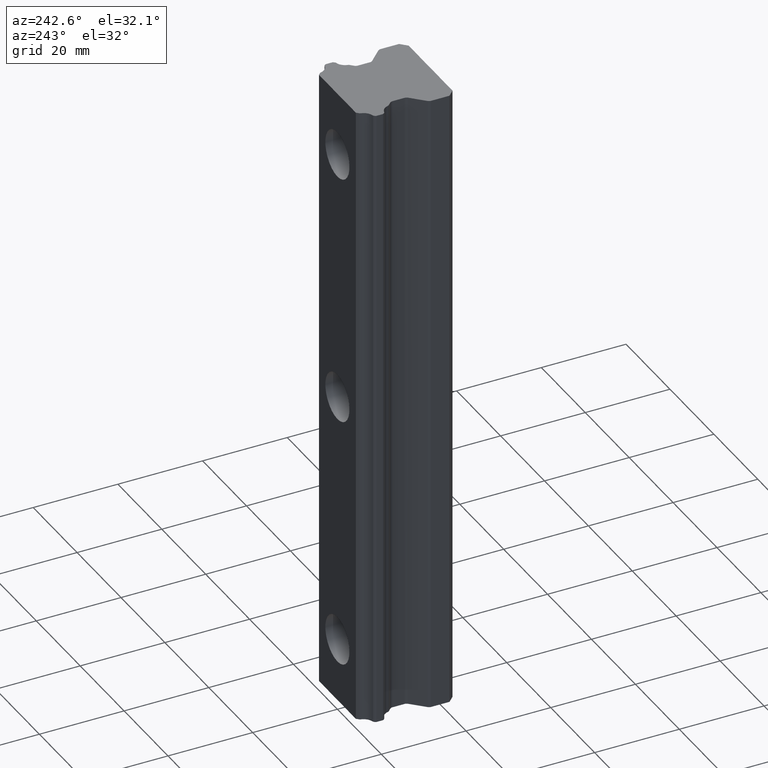
[diagram: clean part render]
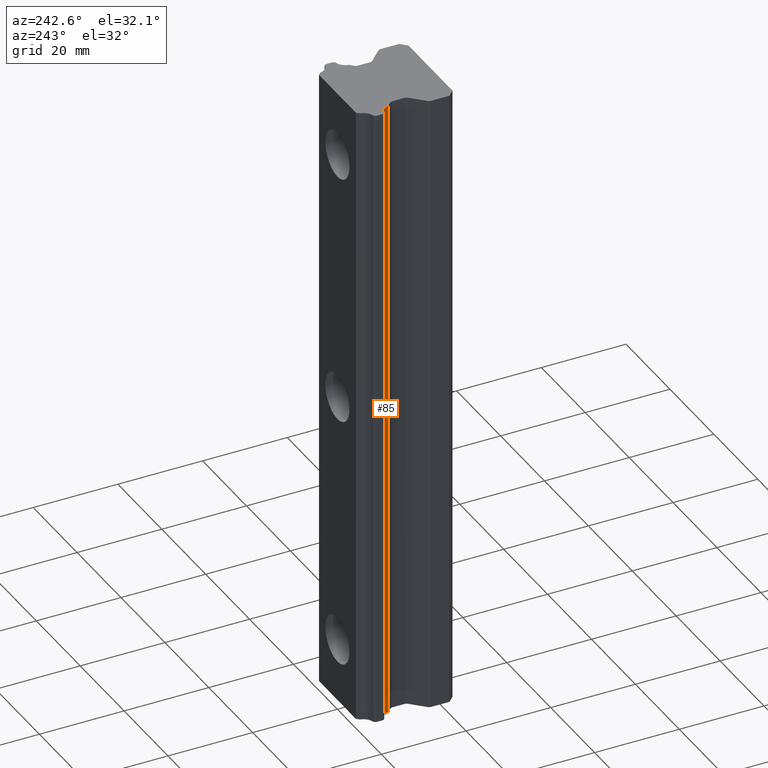
[diagram: same view with one face highlighted and labeled with its STEP entity id]
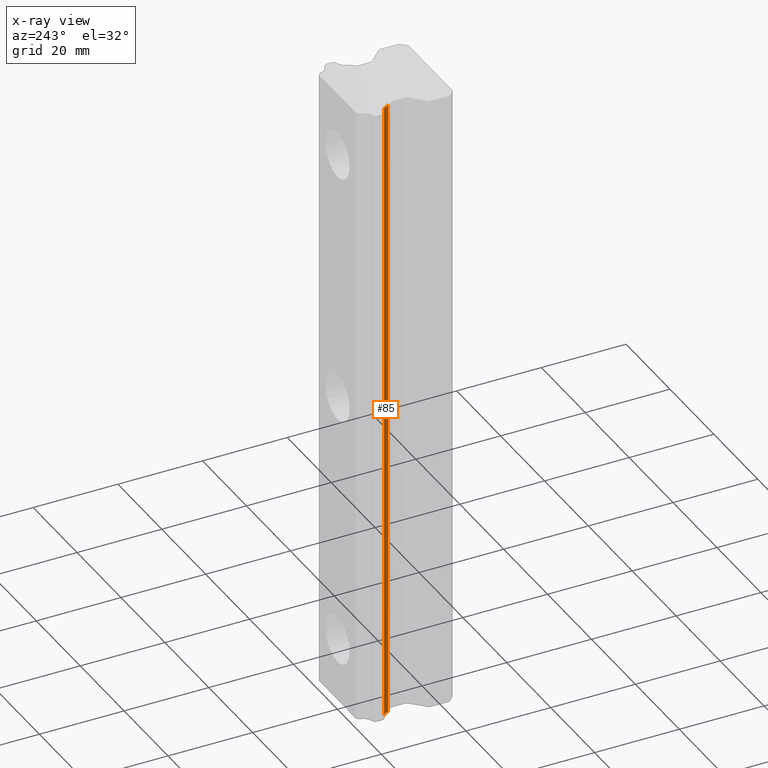
[diagram: x-ray of the same camera — body ghosted, the highlighted face saturated]
A machine part, auxiliary view. The second image highlights one B-rep face of the part: STEP entity #85.
The next image is the same camera in x-ray: the body ghosted, the highlighted face saturated — about 0% of this face is hidden behind the body in this view.
In plain terms, the highlighted cylindrical surface (edge-blend (fillet) strip) has radius 2.43 mm, axis along (0, 0, 1).
Its self-contained STEP definition (entity closure, byte-faithful):
#58 = EDGE_LOOP ( 'NONE', ( #84, #77, #91, #102 ) ) ;
#77 = ORIENTED_EDGE ( 'NONE', *, *, #429, .F. ) ;
#83 = EDGE_CURVE ( 'NONE', #430, #519, #657, .T. ) ;
#84 = ORIENTED_EDGE ( 'NONE', *, *, #83, .F. ) ;
#85 = ADVANCED_FACE ( 'NONE', ( #653 ), #652, .F. ) ;
#91 = ORIENTED_EDGE ( 'NONE', *, *, #109, .T. ) ;
#102 = ORIENTED_EDGE ( 'NONE', *, *, #529, .F. ) ;
#109 = EDGE_CURVE ( 'NONE', #427, #414, #632, .T. ) ;
#414 = VERTEX_POINT ( 'NONE', #1236 ) ;
#427 = VERTEX_POINT ( 'NONE', #1214 ) ;
#429 = EDGE_CURVE ( 'NONE', #427, #430, #1213, .T. ) ;
#430 = VERTEX_POINT ( 'NONE', #1209 ) ;
#519 = VERTEX_POINT ( 'NONE', #1521 ) ;
#529 = EDGE_CURVE ( 'NONE', #519, #414, #1568, .T. ) ;
#596 = CARTESIAN_POINT ( 'NONE',  ( -11.44706701449000100, -7.742721014494001100, 75.00000000000000000 ) ) ;
#628 = DIRECTION ( 'NONE',  ( 1.000000000000000000, 2.498572907785524800E-015, 0.0000000000000000000 ) ) ;
#629 = DIRECTION ( 'NONE',  ( 0.0000000000000000000, 0.0000000000000000000, -1.000000000000000000 ) ) ;
#630 = CARTESIAN_POINT ( 'NONE',  ( -11.44706701449000100, -7.742721014494001100, -75.00000000000000000 ) ) ;
#631 = AXIS2_PLACEMENT_3D ( 'NONE', #630, #629, #628 ) ;
#632 = CIRCLE ( 'NONE', #631, 2.429999999999999700 ) ;
#647 = DIRECTION ( 'NONE',  ( 1.000000000000000000, 0.0000000000000000000, 0.0000000000000000000 ) ) ;
#648 = DIRECTION ( 'NONE',  ( 0.0000000000000000000, 0.0000000000000000000, 1.000000000000000000 ) ) ;
#649 = CARTESIAN_POINT ( 'NONE',  ( -11.44706701449000100, -7.742721014494001100, -75.00000000000000000 ) ) ;
#650 = AXIS2_PLACEMENT_3D ( 'NONE', #649, #648, #647 ) ;
#652 = CYLINDRICAL_SURFACE ( 'NONE', #650, 2.429999999999999700 ) ;
#653 = FACE_OUTER_BOUND ( 'NONE', #58, .T. ) ;
#654 = DIRECTION ( 'NONE',  ( 1.000000000000000000, 2.498572907785524800E-015, 0.0000000000000000000 ) ) ;
#655 = DIRECTION ( 'NONE',  ( 0.0000000000000000000, 0.0000000000000000000, -1.000000000000000000 ) ) ;
#656 = AXIS2_PLACEMENT_3D ( 'NONE', #596, #655, #654 ) ;
#657 = CIRCLE ( 'NONE', #656, 2.429999999999999700 ) ;
#1209 = CARTESIAN_POINT ( 'NONE',  ( -10.93986247299022800, -5.366243883731206300, 75.00000000000000000 ) ) ;
#1210 = DIRECTION ( 'NONE',  ( 0.0000000000000000000, 0.0000000000000000000, 1.000000000000000000 ) ) ;
#1211 = VECTOR ( 'NONE', #1210, 1000.000000000000000 ) ;
#1212 = CARTESIAN_POINT ( 'NONE',  ( -10.93986247255630300, -5.366243883814677300, -75.00000000000000000 ) ) ;
#1213 = LINE ( 'NONE', #1212, #1211 ) ;
#1214 = CARTESIAN_POINT ( 'NONE',  ( -10.93986247299022800, -5.366243883731206300, -75.00000000000000000 ) ) ;
#1236 = CARTESIAN_POINT ( 'NONE',  ( -9.070589883731148700, -7.235516472983124300, -75.00000000000000000 ) ) ;
#1521 = CARTESIAN_POINT ( 'NONE',  ( -9.070589883731148700, -7.235516472983124300, 75.00000000000000000 ) ) ;
#1565 = DIRECTION ( 'NONE',  ( 0.0000000000000000000, 0.0000000000000000000, -1.000000000000000000 ) ) ;
#1566 = VECTOR ( 'NONE', #1565, 1000.000000000000000 ) ;
#1567 = CARTESIAN_POINT ( 'NONE',  ( -9.070589883814733400, -7.235516472541302600, -75.00000000000000000 ) ) ;
#1568 = LINE ( 'NONE', #1567, #1566 ) ;